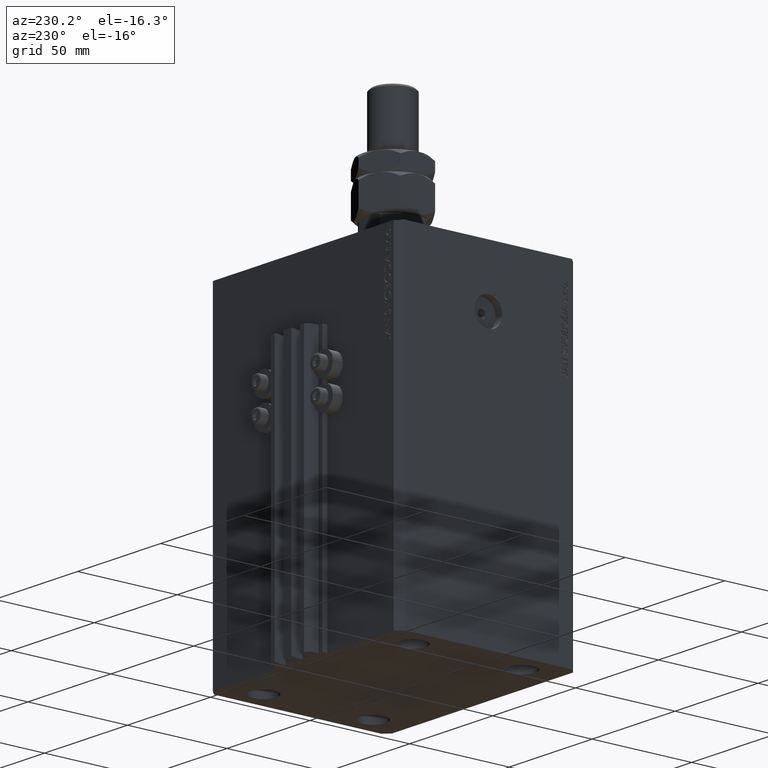
[diagram: clean part render]
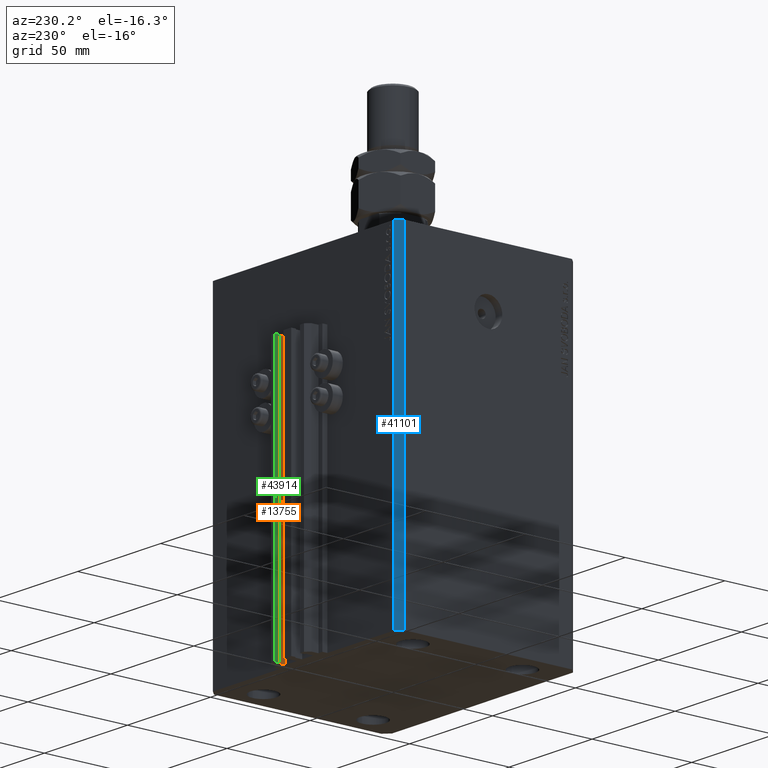
[diagram: same view with three faces highlighted in distinct colors, each labeled with its STEP entity id]
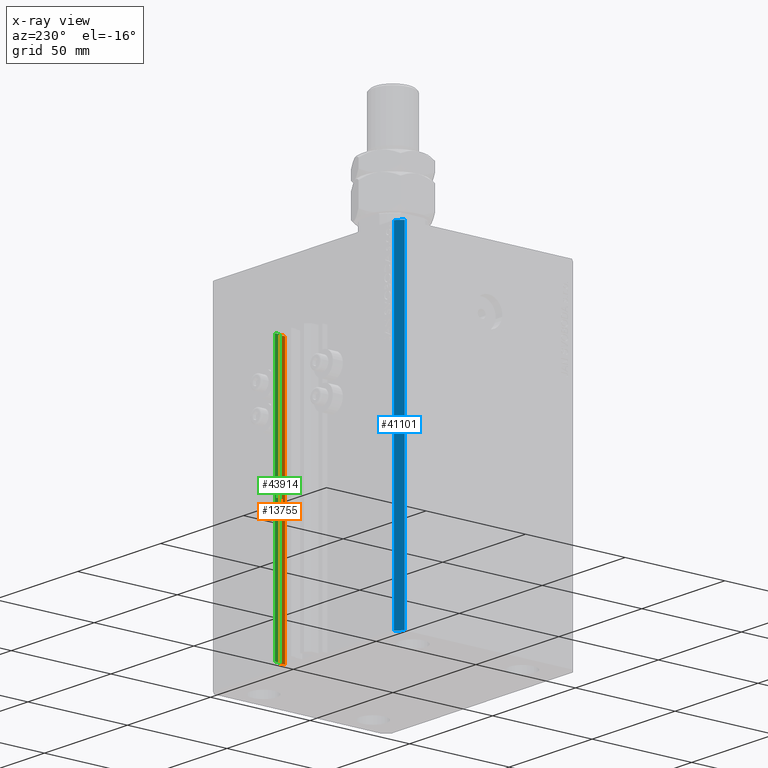
[diagram: x-ray of the same camera — body ghosted, the three highlighted faces saturated]
A machine part, auxiliary view with three faces highlighted in distinct colors.
The next image is the same camera in x-ray (body ghosted, the three faces saturated) — at least one of them is partly hidden behind the body in this view.
Their STEP definitions:

[orange] entity #13755 — the highlighted planar face has unit normal (-1, 0, 0).
#101 = DIRECTION ( 'NONE',  ( -5.421010862427507379E-16, -1.000000000000000000, 0.000000000000000000 ) ) ;
#547 = EDGE_CURVE ( 'NONE', #20955, #1959, #14412, .T. ) ;
#589 = CARTESIAN_POINT ( 'NONE',  ( 8.400000000000000355, 50.39999999999999858, -165.0000000000000000 ) ) ;
#1959 = VERTEX_POINT ( 'NONE', #38541 ) ;
#3110 = ORIENTED_EDGE ( 'NONE', *, *, #6279, .T. ) ;
#3115 = LINE ( 'NONE', #18172, #3442 ) ;
#3442 = VECTOR ( 'NONE', #33718, 1000.000000000000000 ) ;
#3786 = CARTESIAN_POINT ( 'NONE',  ( 8.400000000000000355, 50.39999999999999858, -165.0000000000000000 ) ) ;
#4048 = PLANE ( 'NONE',  #28804 ) ;
#4076 = VERTEX_POINT ( 'NONE', #20263 ) ;
#5366 = CARTESIAN_POINT ( 'NONE',  ( 8.400000000000003908, 50.39999999999999858, -33.00000000000000000 ) ) ;
#6279 = EDGE_CURVE ( 'NONE', #1959, #4076, #32101, .T. ) ;
#10373 = CARTESIAN_POINT ( 'NONE',  ( 8.400000000000000355, 47.19999999999998863, -165.0000000000000000 ) ) ;
#12190 = DIRECTION ( 'NONE',  ( -1.000000000000000000, 5.421010862427507379E-16, 0.000000000000000000 ) ) ;
#12639 = VECTOR ( 'NONE', #47994, 1000.000000000000000 ) ;
#13755 = ADVANCED_FACE ( 'NONE', ( #23059 ), #4048, .T. ) ;
#14412 = LINE ( 'NONE', #3786, #12639 ) ;
#14833 = VECTOR ( 'NONE', #18301, 1000.000000000000000 ) ;
#17016 = CARTESIAN_POINT ( 'NONE',  ( 8.400000000000003908, 50.39999999999999858, -165.0000000000000000 ) ) ;
#18172 = CARTESIAN_POINT ( 'NONE',  ( 8.400000000000000355, 50.39999999999999858, -33.00000000000000000 ) ) ;
#18301 = DIRECTION ( 'NONE',  ( 0.000000000000000000, 0.000000000000000000, 1.000000000000000000 ) ) ;
#20241 = ORIENTED_EDGE ( 'NONE', *, *, #32519, .F. ) ;
#20263 = CARTESIAN_POINT ( 'NONE',  ( 8.400000000000000355, 47.19999999999998863, -33.00000000000000000 ) ) ;
#20955 = VERTEX_POINT ( 'NONE', #17016 ) ;
#22016 = LINE ( 'NONE', #37069, #14833 ) ;
#23059 = FACE_OUTER_BOUND ( 'NONE', #24550, .T. ) ;
#24550 = EDGE_LOOP ( 'NONE', ( #47606, #20241, #33649, #3110 ) ) ;
#28804 = AXIS2_PLACEMENT_3D ( 'NONE', #589, #12190, #101 ) ;
#32101 = LINE ( 'NONE', #10373, #32456 ) ;
#32456 = VECTOR ( 'NONE', #39518, 1000.000000000000000 ) ;
#32519 = EDGE_CURVE ( 'NONE', #20955, #37178, #22016, .T. ) ;
#33649 = ORIENTED_EDGE ( 'NONE', *, *, #547, .T. ) ;
#33718 = DIRECTION ( 'NONE',  ( -5.421010862427508365E-16, -1.000000000000000000, 0.000000000000000000 ) ) ;
#37069 = CARTESIAN_POINT ( 'NONE',  ( 8.400000000000003908, 50.39999999999999858, -165.0000000000000000 ) ) ;
#37178 = VERTEX_POINT ( 'NONE', #5366 ) ;
#38541 = CARTESIAN_POINT ( 'NONE',  ( 8.400000000000000355, 47.19999999999998863, -165.0000000000000000 ) ) ;
#39518 = DIRECTION ( 'NONE',  ( 0.000000000000000000, 0.000000000000000000, 1.000000000000000000 ) ) ;
#45683 = EDGE_CURVE ( 'NONE', #37178, #4076, #3115, .T. ) ;
#47606 = ORIENTED_EDGE ( 'NONE', *, *, #45683, .F. ) ;
#47994 = DIRECTION ( 'NONE',  ( -5.421010862427508365E-16, -1.000000000000000000, 0.000000000000000000 ) ) ;

[blue] entity #41101 — the highlighted planar face has unit normal (-0.7071, 0.7071, 0).
#2064 = VERTEX_POINT ( 'NONE', #13324 ) ;
#2652 = VECTOR ( 'NONE', #21169, 1000.000000000000000 ) ;
#2708 = PLANE ( 'NONE',  #20628 ) ;
#3151 = CARTESIAN_POINT ( 'NONE',  ( -54.49999999999999289, 45.00000000000000000, 0.000000000000000000 ) ) ;
#7179 = EDGE_CURVE ( 'NONE', #2064, #25395, #9947, .T. ) ;
#8556 = CARTESIAN_POINT ( 'NONE',  ( -57.49999999999998579, 42.00000000000000711, 0.000000000000000000 ) ) ;
#9808 = CARTESIAN_POINT ( 'NONE',  ( -54.49999999999999289, 45.00000000000000000, -165.0000000000000000 ) ) ;
#9947 = LINE ( 'NONE', #47235, #42768 ) ;
#10338 = ORIENTED_EDGE ( 'NONE', *, *, #7179, .T. ) ;
#10593 = EDGE_CURVE ( 'NONE', #17190, #2064, #32269, .T. ) ;
#13324 = CARTESIAN_POINT ( 'NONE',  ( -57.49999999999998579, 42.00000000000000711, -165.0000000000000000 ) ) ;
#14032 = CARTESIAN_POINT ( 'NONE',  ( -54.49999999999999289, 45.00000000000000000, -165.0000000000000000 ) ) ;
#14301 = EDGE_CURVE ( 'NONE', #39350, #25395, #27611, .T. ) ;
#16344 = CARTESIAN_POINT ( 'NONE',  ( -54.49999999999999289, 45.00000000000000000, -165.0000000000000000 ) ) ;
#17190 = VERTEX_POINT ( 'NONE', #16344 ) ;
#17354 = DIRECTION ( 'NONE',  ( 0.000000000000000000, 0.000000000000000000, 1.000000000000000000 ) ) ;
#19305 = EDGE_LOOP ( 'NONE', ( #42130, #29291, #27922, #10338 ) ) ;
#20628 = AXIS2_PLACEMENT_3D ( 'NONE', #39994, #47891, #43938 ) ;
#21169 = DIRECTION ( 'NONE',  ( -0.7071067811865483499, -0.7071067811865466846, 0.000000000000000000 ) ) ;
#23064 = VECTOR ( 'NONE', #29088, 1000.000000000000000 ) ;
#25395 = VERTEX_POINT ( 'NONE', #8556 ) ;
#27611 = LINE ( 'NONE', #43395, #46154 ) ;
#27922 = ORIENTED_EDGE ( 'NONE', *, *, #10593, .T. ) ;
#29088 = DIRECTION ( 'NONE',  ( 0.000000000000000000, 0.000000000000000000, 1.000000000000000000 ) ) ;
#29291 = ORIENTED_EDGE ( 'NONE', *, *, #46686, .F. ) ;
#29823 = LINE ( 'NONE', #14032, #23064 ) ;
#32269 = LINE ( 'NONE', #9808, #2652 ) ;
#35348 = FACE_OUTER_BOUND ( 'NONE', #19305, .T. ) ;
#38728 = DIRECTION ( 'NONE',  ( -0.7071067811865483499, -0.7071067811865466846, 0.000000000000000000 ) ) ;
#39350 = VERTEX_POINT ( 'NONE', #3151 ) ;
#39994 = CARTESIAN_POINT ( 'NONE',  ( -54.49999999999999289, 45.00000000000000000, -165.0000000000000000 ) ) ;
#41101 = ADVANCED_FACE ( 'NONE', ( #35348 ), #2708, .T. ) ;
#42130 = ORIENTED_EDGE ( 'NONE', *, *, #14301, .F. ) ;
#42768 = VECTOR ( 'NONE', #17354, 1000.000000000000000 ) ;
#43395 = CARTESIAN_POINT ( 'NONE',  ( -54.49999999999999289, 45.00000000000000000, 0.000000000000000000 ) ) ;
#43938 = DIRECTION ( 'NONE',  ( -0.7071067811865483499, -0.7071067811865466846, 0.000000000000000000 ) ) ;
#46154 = VECTOR ( 'NONE', #38728, 1000.000000000000000 ) ;
#46686 = EDGE_CURVE ( 'NONE', #17190, #39350, #29823, .T. ) ;
#47235 = CARTESIAN_POINT ( 'NONE',  ( -57.49999999999998579, 42.00000000000000711, -165.0000000000000000 ) ) ;
#47891 = DIRECTION ( 'NONE',  ( -0.7071067811865466846, 0.7071067811865483499, 0.000000000000000000 ) ) ;

[green] entity #43914 — the highlighted planar face has unit normal (-1, 0, 0).
#1509 = VECTOR ( 'NONE', #20729, 1000.000000000000000 ) ;
#1536 = DIRECTION ( 'NONE',  ( 0.000000000000000000, 0.000000000000000000, 1.000000000000000000 ) ) ;
#2004 = FACE_OUTER_BOUND ( 'NONE', #15540, .T. ) ;
#2310 = LINE ( 'NONE', #29221, #44116 ) ;
#2485 = DIRECTION ( 'NONE',  ( -1.000000000000000000, 0.000000000000000000, 0.000000000000000000 ) ) ;
#3197 = VECTOR ( 'NONE', #1536, 1000.000000000000000 ) ;
#4365 = VERTEX_POINT ( 'NONE', #15703 ) ;
#4573 = CARTESIAN_POINT ( 'NONE',  ( 7.649999999999998579, 50.60000000000000853, -33.00000000000000000 ) ) ;
#4773 = LINE ( 'NONE', #31168, #3197 ) ;
#4891 = ORIENTED_EDGE ( 'NONE', *, *, #37722, .T. ) ;
#7962 = VERTEX_POINT ( 'NONE', #4573 ) ;
#11254 = VECTOR ( 'NONE', #25745, 1000.000000000000000 ) ;
#12124 = VERTEX_POINT ( 'NONE', #37288 ) ;
#13670 = DIRECTION ( 'NONE',  ( 0.000000000000000000, -1.000000000000000000, 0.000000000000000000 ) ) ;
#15540 = EDGE_LOOP ( 'NONE', ( #33061, #40769, #25310, #4891 ) ) ;
#15703 = CARTESIAN_POINT ( 'NONE',  ( 7.649999999999998579, 53.00000000000000711, -33.00000000000000000 ) ) ;
#16825 = PLANE ( 'NONE',  #23067 ) ;
#20729 = DIRECTION ( 'NONE',  ( 0.000000000000000000, -1.000000000000000000, 0.000000000000000000 ) ) ;
#20776 = CARTESIAN_POINT ( 'NONE',  ( 7.649999999999998579, 53.00000000000000711, -165.0000000000000000 ) ) ;
#20959 = EDGE_CURVE ( 'NONE', #12124, #39649, #36755, .T. ) ;
#23067 = AXIS2_PLACEMENT_3D ( 'NONE', #20776, #2485, #24959 ) ;
#24959 = DIRECTION ( 'NONE',  ( 0.000000000000000000, 0.000000000000000000, 1.000000000000000000 ) ) ;
#25310 = ORIENTED_EDGE ( 'NONE', *, *, #20959, .T. ) ;
#25745 = DIRECTION ( 'NONE',  ( 0.000000000000000000, 0.000000000000000000, 1.000000000000000000 ) ) ;
#29221 = CARTESIAN_POINT ( 'NONE',  ( 7.649999999999998579, 53.00000000000000711, -33.00000000000000000 ) ) ;
#29934 = LINE ( 'NONE', #37105, #11254 ) ;
#31168 = CARTESIAN_POINT ( 'NONE',  ( 7.649999999999998579, 50.60000000000000853, -165.0000000000000000 ) ) ;
#31680 = EDGE_CURVE ( 'NONE', #4365, #7962, #2310, .T. ) ;
#32720 = CARTESIAN_POINT ( 'NONE',  ( 7.649999999999998579, 50.60000000000000853, -165.0000000000000000 ) ) ;
#33061 = ORIENTED_EDGE ( 'NONE', *, *, #31680, .F. ) ;
#36755 = LINE ( 'NONE', #44409, #1509 ) ;
#37105 = CARTESIAN_POINT ( 'NONE',  ( 7.649999999999998579, 53.00000000000000711, -165.0000000000000000 ) ) ;
#37288 = CARTESIAN_POINT ( 'NONE',  ( 7.649999999999998579, 53.00000000000000711, -165.0000000000000000 ) ) ;
#37722 = EDGE_CURVE ( 'NONE', #39649, #7962, #4773, .T. ) ;
#39649 = VERTEX_POINT ( 'NONE', #32720 ) ;
#40769 = ORIENTED_EDGE ( 'NONE', *, *, #46436, .F. ) ;
#43914 = ADVANCED_FACE ( 'NONE', ( #2004 ), #16825, .T. ) ;
#44116 = VECTOR ( 'NONE', #13670, 1000.000000000000000 ) ;
#44409 = CARTESIAN_POINT ( 'NONE',  ( 7.649999999999998579, 53.00000000000000711, -165.0000000000000000 ) ) ;
#46436 = EDGE_CURVE ( 'NONE', #12124, #4365, #29934, .T. ) ;